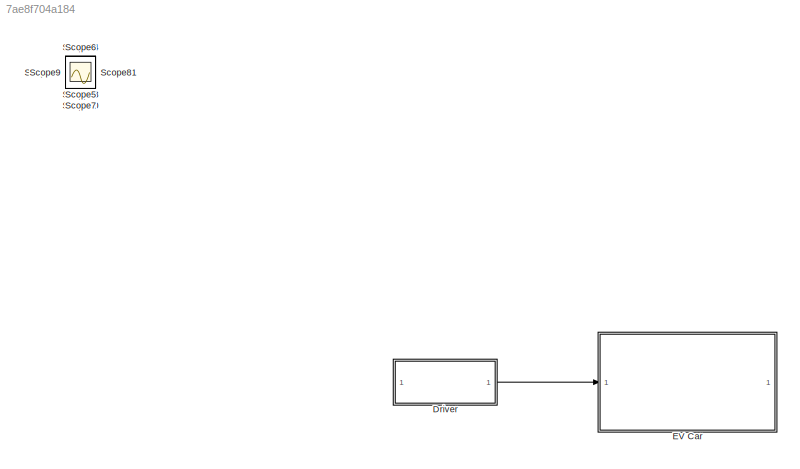
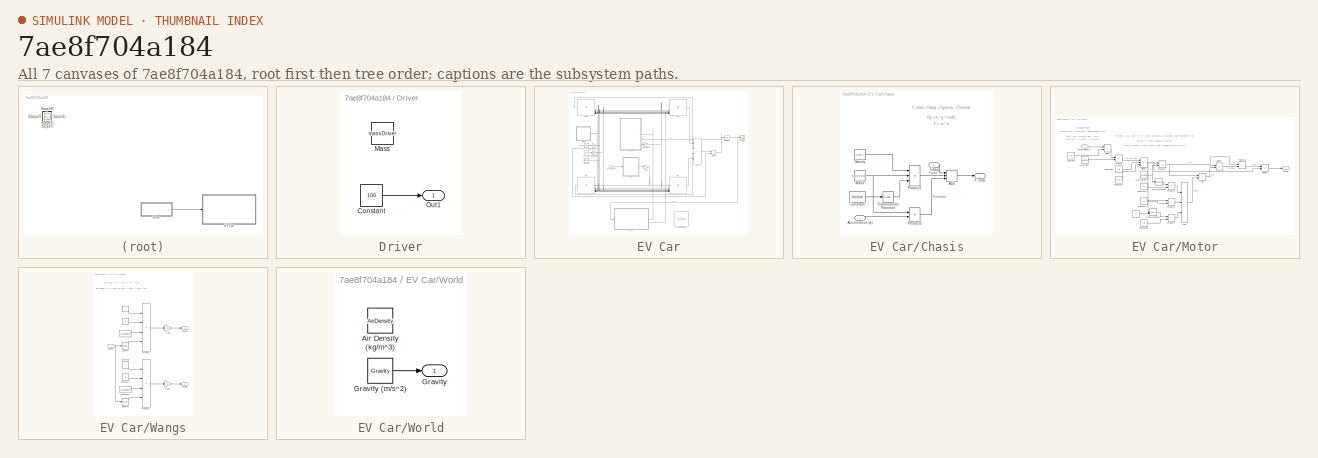
[diagram: thumbnail index - all 7 canvases of the model, root first then tree order]
MODEL slx_7ae8f704a184
KIND model
CONFIG AbsTol = auto
CONFIG EnableMultiTasking = off
CONFIG FixedStep = auto
CONFIG MaxStep = auto
CONFIG MinStep = auto
CONFIG RelTol = 1e-3
CONFIG SampleTimeConstraint = Unconstrained
CONFIG SolverName = VariableStepAuto
CONFIG StartTime = 0.0
CONFIG StopTime = 60.0
WORKSPACE source: mxarray member
WORKSPACE A = 1
WORKSPACE ADownforce = 1.5
WORKSPACE AirDensity = 1
WORKSPACE Cd = 0.8
WORKSPACE CdDownforce = 1.4
WORKSPACE Cl = 1.6
WORKSPACE Crr = 0.0015
WORKSPACE Gravity = 9.81
WORKSPACE Incline = 0
WORKSPACE K_c = 0.2
WORKSPACE K_i = 0.005
WORKSPACE K_w = 0.0005
WORKSPACE MaxRPM = 2000
WORKSPACE TireRadius = 0.2032
WORKSPACE Torque = 230
WORKSPACE massCar = 130
WORKSPACE massDriver = 60
BLOCK [SubSystem] Driver
BLOCK [Constant] Driver/Constant
  Value = 100
BLOCK [Constant] Driver/Mass
  Value = massDriver
BLOCK [Outport] Driver/Out1
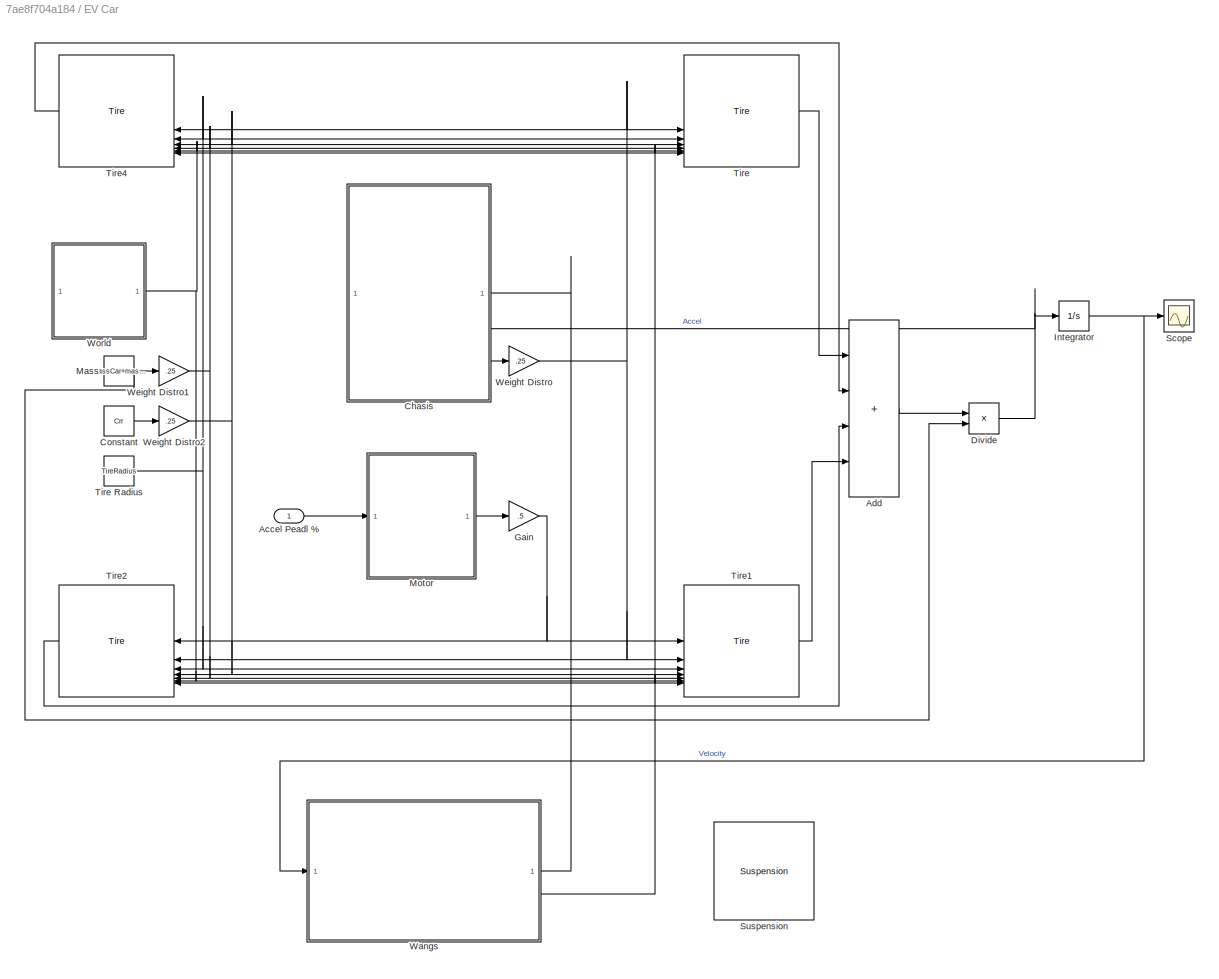
BLOCK [SubSystem] EV Car
BLOCK [Inport] EV Car/Accel Peadl %
BLOCK [Sum] EV Car/Add
  IconShape = rectangular
  Inputs = ++++
BLOCK [SubSystem] EV Car/Chasis
  PortSchema = {"entries":[{"content":{"sides":[{"content":{},"type":"ConnectorPlacement.EquallySpacedRectSide","uuid":"3bf05a28-119f-4ffa-933d-d1f1ff116959"},{"content":{"connectorIds":["In1","In2","Out1"],"side":"RIGHT"},"type":"ConnectorPlacement.EquallySpacedRectSide","uuid":"eb63bc44-58b6-4772-bae2-bbb2fef2688c"},{"content":{"side":"TOP"},"type":"ConnectorPlacement.EquallySpacedRectSide","uuid":"2e4910ff-b3...<+338ch>
BLOCK [Inport] EV Car/Chasis/Acceleration (a)
  Port = 2
BLOCK [Sum] EV Car/Chasis/Add
  IconShape = rectangular
  Inputs = +++
BLOCK [Constant] EV Car/Chasis/Constant
  Value = Incline
BLOCK [Outport] EV Car/Chasis/F_total
BLOCK [Inport] EV Car/Chasis/Fdrag
BLOCK [Constant] EV Car/Chasis/Gravity
  Value = Gravity
BLOCK [Constant] EV Car/Chasis/Mass
  Value = massCar+massDriver
BLOCK [Product] EV Car/Chasis/Product1
  Inputs = 3
BLOCK [Product] EV Car/Chasis/Product2
BLOCK [Trigonometry] EV Car/Chasis/Trigonometric Function
BLOCK [Constant] EV Car/Constant
  Value = Crr
BLOCK [Product] EV Car/Divide
  Inputs = */
BLOCK [Gain] EV Car/Gain
  Gain = .5
BLOCK [Integrator] EV Car/Integrator
BLOCK [Constant] EV Car/Mass
  Value = massCar+massDriver
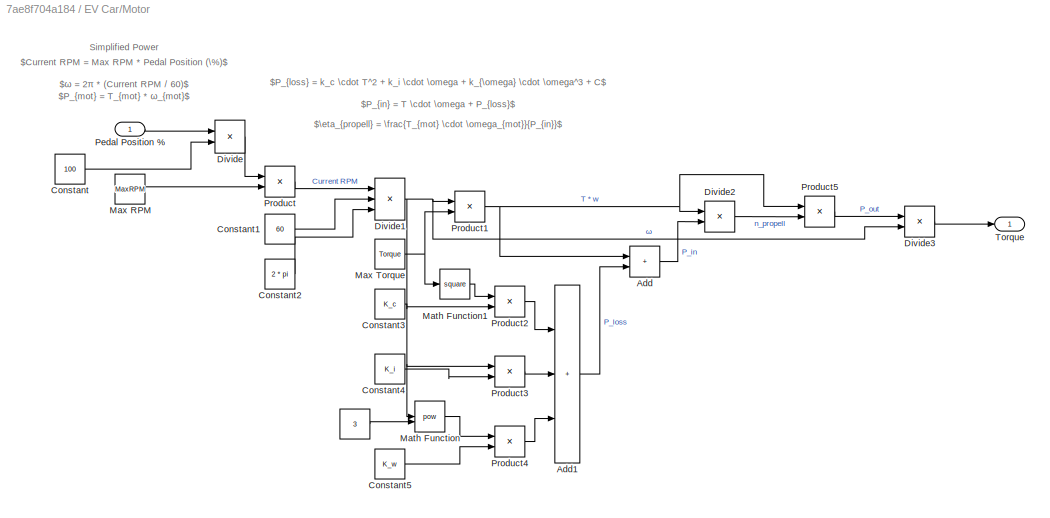
BLOCK [SubSystem] EV Car/Motor
  NameLocation = top
BLOCK [Constant] EV Car/Motor/ 
  Value = 3
BLOCK [Sum] EV Car/Motor/Add
  IconShape = rectangular
BLOCK [Sum] EV Car/Motor/Add1
  IconShape = rectangular
  Inputs = +++
BLOCK [Constant] EV Car/Motor/Constant
  Value = 100
BLOCK [Constant] EV Car/Motor/Constant1
  Value = 60
BLOCK [Constant] EV Car/Motor/Constant2
  Value = 2 * pi
BLOCK [Constant] EV Car/Motor/Constant3
  Value = K_c
BLOCK [Constant] EV Car/Motor/Constant4
  Value = K_i
BLOCK [Constant] EV Car/Motor/Constant5
  Value = K_w
BLOCK [Product] EV Car/Motor/Divide
  Inputs = */
BLOCK [Product] EV Car/Motor/Divide1
  Inputs = */*
BLOCK [Product] EV Car/Motor/Divide2
  Inputs = */
BLOCK [Product] EV Car/Motor/Divide3
  Inputs = */
BLOCK [Math] EV Car/Motor/Math Function
  Operator = pow
BLOCK [Math] EV Car/Motor/Math Function1
  Operator = square
BLOCK [Constant] EV Car/Motor/Max RPM
  Value = MaxRPM
BLOCK [Constant] EV Car/Motor/Max Torque
  Value = Torque
BLOCK [Inport] EV Car/Motor/Pedal Position %
BLOCK [Product] EV Car/Motor/Product
BLOCK [Product] EV Car/Motor/Product1
BLOCK [Product] EV Car/Motor/Product2
BLOCK [Product] EV Car/Motor/Product3
BLOCK [Product] EV Car/Motor/Product4
BLOCK [Product] EV Car/Motor/Product5
BLOCK [Outport] EV Car/Motor/Torque
BLOCK [Scope] EV Car/Scope
  Floating = off
  NumInputPorts = 1
  ScopeSpecificationString = Simulink.scopes.TimeScopeBlockCfg('CurrentConfiguration', extmgr.ConfigurationSet(extmgr.Configuration('Core','General UI',true),extmgr.Configuration('Core','Source UI',true),extmgr.Configuration('Sources','WiredSimulink',true),extmgr.Configuration('Visuals','Time Domain',true,'SerializedDisplays',{struct('MinYLimReal','-1.53738','MaxYLimReal','13.83641','YLabelReal','','MinYLimMag','0.00000','Max...<+1360ch>
BLOCK [Reference] EV Car/Suspension  REF=LinkedSubsytems/Suspension
  SourceBlock = LinkedSubsytems/Suspension
BLOCK [Reference] EV Car/Tire  REF=LinkedSubsytems/Tire
  SourceBlock = LinkedSubsytems/Tire
BLOCK [Constant] EV Car/Tire Radius
  Value = TireRadius
BLOCK [Reference] EV Car/Tire1  REF=LinkedSubsytems/Tire
  SourceBlock = LinkedSubsytems/Tire
BLOCK [Reference] EV Car/Tire2  REF=LinkedSubsytems/Tire
  SourceBlock = LinkedSubsytems/Tire
BLOCK [Reference] EV Car/Tire4  REF=LinkedSubsytems/Tire
  SourceBlock = LinkedSubsytems/Tire
BLOCK [SubSystem] EV Car/Wangs
BLOCK [Constant] EV Car/Wangs/ 
  Value = A
BLOCK [Constant] EV Car/Wangs/  
  Value = Cd
BLOCK [Constant] EV Car/Wangs/   
  Value = AirDensity
BLOCK [Constant] EV Car/Wangs/Constant
  Value = A
BLOCK [Constant] EV Car/Wangs/Constant1
  Value = Cl
BLOCK [Constant] EV Car/Wangs/Constant2
  Value = AirDensity
BLOCK [Outport] EV Car/Wangs/Fdown
  Port = 2
BLOCK [Outport] EV Car/Wangs/Fdrag
BLOCK [Gain] EV Car/Wangs/Gain
  Gain = .5
BLOCK [Gain] EV Car/Wangs/Gain1
  Gain = .5
BLOCK [Product] EV Car/Wangs/Product
  Inputs = 4
BLOCK [Product] EV Car/Wangs/Product1
  Inputs = 4
BLOCK [Math] EV Car/Wangs/Square
  Operator = square
BLOCK [Math] EV Car/Wangs/Square1
  Operator = square
BLOCK [Inport] EV Car/Wangs/Velocity
BLOCK [Gain] EV Car/Weight Distro
  Gain = .25
BLOCK [Gain] EV Car/Weight Distro1
  Gain = .25
BLOCK [Gain] EV Car/Weight Distro2
  Gain = .25
BLOCK [SubSystem] EV Car/World
BLOCK [Constant] EV Car/World/Air Density (kg//m^3)
  Value = AirDensity
BLOCK [Outport] EV Car/World/Gravity
BLOCK [Constant] EV Car/World/Gravity (m//s^2)
  Value = Gravity
BLOCK [Scope] Scope
  Floating = off
  IOType = viewer
  NumInputPorts = 1
  ScopeSpecificationString = Simulink.scopes.TimeScopeBlockCfg('CurrentConfiguration', extmgr.ConfigurationSet(extmgr.Configuration('Core','General UI',true),extmgr.Configuration('Core','Source UI',true),extmgr.Configuration('Sources','WiredSimulink',true,'DataLoggingVariableName','ScopeData1'),extmgr.Configuration('Visuals','Time Domain',true,'SerializedDisplays',{struct('MinYLimReal','74.90307','MaxYLimReal','274.90307','YL...<+1438ch>
BLOCK [Scope] Scope1
  Floating = off
  IOType = viewer
  NumInputPorts = 1
  ScopeSpecificationString = Simulink.scopes.TimeScopeBlockCfg('CurrentConfiguration', extmgr.ConfigurationSet(extmgr.Configuration('Core','General UI',true),extmgr.Configuration('Core','Source UI',true),extmgr.Configuration('Sources','WiredSimulink',true,'DataLoggingVariableName','ScopeData2'),extmgr.Configuration('Visuals','Time Domain',true,'SerializedDisplays',{struct('MinYLimReal','-1.74189','MaxYLimReal','-1.74142','YLa...<+1361ch>
BLOCK [Scope] Scope10
  Floating = off
  IOType = viewer
  NumInputPorts = 1
  ScopeSpecificationString = Simulink.scopes.TimeScopeBlockCfg('CurrentConfiguration', extmgr.ConfigurationSet(extmgr.Configuration('Core','General UI',true),extmgr.Configuration('Core','Source UI',true),extmgr.Configuration('Sources','WiredSimulink',true,'DataLoggingVariableName','ScopeData1'),extmgr.Configuration('Visuals','Time Domain',true,'SerializedDisplays',{struct('MinYLimReal','74.90307','MaxYLimReal','274.90307','YL...<+1441ch>
BLOCK [Scope] Scope11
  Floating = off
  IOType = viewer
  NumInputPorts = 1
  ScopeSpecificationString = Simulink.scopes.TimeScopeBlockCfg('CurrentConfiguration', extmgr.ConfigurationSet(extmgr.Configuration('Core','General UI',true),extmgr.Configuration('Core','Source UI',true),extmgr.Configuration('Sources','WiredSimulink',true,'DataLoggingVariableName','ScopeData2'),extmgr.Configuration('Visuals','Time Domain',true,'SerializedDisplays',{struct('MinYLimReal','-21.42031','MaxYLimReal','-11.95908','Y...<+1402ch>
BLOCK [Scope] Scope12
  Floating = off
  IOType = viewer
  NumInputPorts = 1
  ScopeSpecificationString = Simulink.scopes.TimeScopeBlockCfg('CurrentConfiguration', extmgr.ConfigurationSet(extmgr.Configuration('Core','General UI',true),extmgr.Configuration('Core','Source UI',true),extmgr.Configuration('Sources','WiredSimulink',true,'DataLoggingVariableName','ScopeData3'),extmgr.Configuration('Visuals','Time Domain',true,'SerializedDisplays',{struct('MinYLimReal','30.11313','MaxYLimReal','39.57436','YLa...<+1400ch>
BLOCK [Scope] Scope13
  Floating = off
  IOType = viewer
  NumInputPorts = 1
  ScopeSpecificationString = Simulink.scopes.TimeScopeBlockCfg('CurrentConfiguration', extmgr.ConfigurationSet(extmgr.Configuration('Core','General UI',true),extmgr.Configuration('Core','Source UI',true),extmgr.Configuration('Sources','WiredSimulink',true,'DataLoggingVariableName','ScopeData1'),extmgr.Configuration('Visuals','Time Domain',true,'SerializedDisplays',{struct('MinYLimReal','5174.56967','MaxYLimReal','25174.56967'...<+1456ch>
BLOCK [Scope] Scope14
  Floating = off
  IOType = viewer
  NumInputPorts = 1
  ScopeSpecificationString = Simulink.scopes.TimeScopeBlockCfg('CurrentConfiguration', extmgr.ConfigurationSet(extmgr.Configuration('Core','General UI',true),extmgr.Configuration('Core','Source UI',true),extmgr.Configuration('Sources','WiredSimulink',true,'DataLoggingVariableName','ScopeData2'),extmgr.Configuration('Visuals','Time Domain',true,'SerializedDisplays',{struct('MinYLimReal','38171.08736','MaxYLimReal','58171.08736...<+1461ch>
BLOCK [Scope] Scope2
  Floating = off
  IOType = viewer
  NumInputPorts = 1
  ScopeSpecificationString = Simulink.scopes.TimeScopeBlockCfg('CurrentConfiguration', extmgr.ConfigurationSet(extmgr.Configuration('Core','General UI',true),extmgr.Configuration('Core','Source UI',true),extmgr.Configuration('Sources','WiredSimulink',true,'DataLoggingVariableName','ScopeData3'),extmgr.Configuration('Visuals','Time Domain',true,'SerializedDisplays',{struct('MinYLimReal','2.79598','MaxYLimReal','2.79646','YLabe...<+1386ch>
BLOCK [Scope] Scope3
  Floating = off
  IOType = viewer
  NumInputPorts = 1
  ScopeSpecificationString = Simulink.scopes.TimeScopeBlockCfg('CurrentConfiguration', extmgr.ConfigurationSet(extmgr.Configuration('Core','General UI',true),extmgr.Configuration('Core','Source UI',true),extmgr.Configuration('Sources','WiredSimulink',true,'DataLoggingVariableName','ScopeData4'),extmgr.Configuration('Visuals','Time Domain',true,'SerializedDisplays',{struct('MinYLimReal','0.03352','MaxYLimReal','0.29713','YLabe...<+1391ch>
BLOCK [Scope] Scope4
  Floating = off
  IOType = viewer
  NumInputPorts = 1
  ScopeSpecificationString = Simulink.scopes.TimeScopeBlockCfg('CurrentConfiguration', extmgr.ConfigurationSet(extmgr.Configuration('Core','General UI',true),extmgr.Configuration('Core','Source UI',true),extmgr.Configuration('Sources','WiredSimulink',true,'DataLoggingVariableName','ScopeData5'),extmgr.Configuration('Visuals','Time Domain',true,'SerializedDisplays',{struct('MinYLimReal','6.36937','MaxYLimReal','56.45459','YLab...<+1420ch>
BLOCK [Scope] Scope5
  Floating = off
  IOType = viewer
  NumInputPorts = 1
  ScopeSpecificationString = Simulink.scopes.TimeScopeBlockCfg('CurrentConfiguration', extmgr.ConfigurationSet(extmgr.Configuration('Core','General UI',true),extmgr.Configuration('Core','Source UI',true),extmgr.Configuration('Sources','WiredSimulink',true,'DataLoggingVariableName','ScopeData6'),extmgr.Configuration('Visuals','Time Domain',true,'SerializedDisplays',{struct('MinYLimReal','-54.0622','MaxYLimReal','0.96482','YLab...<+1389ch>
BLOCK [Scope] Scope6
  Floating = off
  IOType = viewer
  NumInputPorts = 1
  ScopeSpecificationString = Simulink.scopes.TimeScopeBlockCfg('CurrentConfiguration', extmgr.ConfigurationSet(extmgr.Configuration('Core','General UI',true),extmgr.Configuration('Core','Source UI',true),extmgr.Configuration('Sources','WiredSimulink',true,'DataLoggingVariableName','ScopeData7'),extmgr.Configuration('Visuals','Time Domain',true,'SerializedDisplays',{struct('MinYLimReal','-1.00000','MaxYLimReal','1.00000','YLab...<+1423ch>
BLOCK [Scope] Scope7
  Floating = off
  IOType = viewer
  NumInputPorts = 1
  ScopeSpecificationString = Simulink.scopes.TimeScopeBlockCfg('CurrentConfiguration', extmgr.ConfigurationSet(extmgr.Configuration('Core','General UI',true),extmgr.Configuration('Core','Source UI',true),extmgr.Configuration('Sources','WiredSimulink',true,'DataLoggingVariableName','ScopeData8'),extmgr.Configuration('Visuals','Time Domain',true,'SerializedDisplays',{struct('MinYLimReal','1.03524','MaxYLimReal','13.37671','YLab...<+1390ch>
BLOCK [Scope] Scope8
  Floating = off
  IOType = viewer
  NumInputPorts = 1
  ScopeSpecificationString = Simulink.scopes.TimeScopeBlockCfg('CurrentConfiguration', extmgr.ConfigurationSet(extmgr.Configuration('Core','General UI',true),extmgr.Configuration('Core','Source UI',true),extmgr.Configuration('Sources','WiredSimulink',true,'DataLoggingVariableName','ScopeData9'),extmgr.Configuration('Visuals','Time Domain',true,'SerializedDisplays',{struct('MinYLimReal','3.53788','MaxYLimReal','5.53788','YLabe...<+1392ch>
BLOCK [Scope] Scope9
  Floating = off
  IOType = viewer
  NumInputPorts = 1
  ScopeSpecificationString = Simulink.scopes.TimeScopeBlockCfg('CurrentConfiguration', extmgr.ConfigurationSet(extmgr.Configuration('Core','General UI',true),extmgr.Configuration('Core','Source UI',true),extmgr.Configuration('Sources','WiredSimulink',true,'DataLoggingVariableName','ScopeData10'),extmgr.Configuration('Visuals','Time Domain',true,'SerializedDisplays',{struct('MinYLimReal','1.03524','MaxYLimReal','13.37671','YLa...<+1362ch>
ANNOTATION EV Car/Chasis: Fg = m * g * sin(θ)
ANNOTATION EV Car/Chasis: Fi = m * a
ANNOTATION EV Car/Chasis: F_total = Fdrag + Fgravity + Finertial
ANNOTATION EV Car/Motor: $Current RPM = Max RPM * Pedal Position (\%)$
ANNOTATION EV Car/Motor: $P_{in} = T \cdot \omega + P_{loss}$
ANNOTATION EV Car/Motor: $P_{loss} = k_c \cdot T^2 + k_i \cdot \omega + k_{\omega} \cdot \omega^3 + C$
ANNOTATION EV Car/Motor: $P_{mot} = T_{mot} * ω_{mot}$
ANNOTATION EV Car/Motor: $\eta_{propell} = \frac{T_{mot} \cdot \omega_{mot}}{P_{in}}$
ANNOTATION EV Car/Motor: $ω = 2π * (Current RPM / 60)$
ANNOTATION EV Car/Motor: Simplified Power
ANNOTATION EV Car/Wangs: $F_{down} = 0.5 \cdot Cl \cdot ρ \cdot A \cdot V^2$
ANNOTATION EV Car/Wangs: $F_{drag} = 0.5 * Cd * A * ρ * V^2$
LINE Driver/Constant:1 -> Driver/Out1:1
LINE Driver:1 -> EV Car:1
LINE EV Car/Accel Peadl %:1 -> EV Car/Motor:1
LINE EV Car/Add:1 -> EV Car/Divide:1
LINE EV Car/Chasis/Acceleration (a):1 -> EV Car/Chasis/Product2:2
LINE EV Car/Chasis/Add:1 -> EV Car/Chasis/F_total:1
LINE EV Car/Chasis/Constant:1 -> EV Car/Chasis/Trigonometric Function:1
LINE EV Car/Chasis/Fdrag:1 -> EV Car/Chasis/Add:1
LINE EV Car/Chasis/Gravity:1 -> EV Car/Chasis/Product1:1
NET EV Car/Chasis/Mass:1 -> EV Car/Chasis/Product1:2, EV Car/Chasis/Product2:1
LINE EV Car/Chasis/Product1:1 -> EV Car/Chasis/Add:2
LINE EV Car/Chasis/Product2:1 -> EV Car/Chasis/Add:3
LINE EV Car/Chasis/Trigonometric Function:1 -> EV Car/Chasis/Product1:3
LINE EV Car/Chasis:1 -> EV Car/Weight Distro:1
LINE EV Car/Constant:1 -> EV Car/Weight Distro2:1
NET EV Car/Divide:1 -> EV Car/Chasis:2, EV Car/Integrator:1
NET EV Car/Gain:1 -> EV Car/Tire1:1, EV Car/Tire2:1
NET EV Car/Integrator:1 -> EV Car/Scope:1, EV Car/Wangs:1
NET EV Car/Mass:1 -> EV Car/Divide:2, EV Car/Weight Distro1:1
LINE EV Car/Motor/ :1 -> EV Car/Motor/Math Function:2
LINE EV Car/Motor/Add1:1 -> EV Car/Motor/Add:2
LINE EV Car/Motor/Add:1 -> EV Car/Motor/Divide2:2
LINE EV Car/Motor/Constant1:1 -> EV Car/Motor/Divide1:2
LINE EV Car/Motor/Constant2:1 -> EV Car/Motor/Divide1:3
LINE EV Car/Motor/Constant3:1 -> EV Car/Motor/Product2:2
LINE EV Car/Motor/Constant4:1 -> EV Car/Motor/Product3:2
LINE EV Car/Motor/Constant5:1 -> EV Car/Motor/Product4:2
LINE EV Car/Motor/Constant:1 -> EV Car/Motor/Divide:2
NET EV Car/Motor/Divide1:1 -> EV Car/Motor/Divide3:2, EV Car/Motor/Math Function:1, EV Car/Motor/Product1:1, EV Car/Motor/Product3:1
LINE EV Car/Motor/Divide2:1 -> EV Car/Motor/Product5:2
LINE EV Car/Motor/Divide3:1 -> EV Car/Motor/Torque:1
LINE EV Car/Motor/Divide:1 -> EV Car/Motor/Product:1
LINE EV Car/Motor/Math Function1:1 -> EV Car/Motor/Product2:1
LINE EV Car/Motor/Math Function:1 -> EV Car/Motor/Product4:1
LINE EV Car/Motor/Max RPM:1 -> EV Car/Motor/Product:2
NET EV Car/Motor/Max Torque:1 -> EV Car/Motor/Math Function1:1, EV Car/Motor/Product1:2
LINE EV Car/Motor/Pedal Position %:1 -> EV Car/Motor/Divide:1
NET EV Car/Motor/Product1:1 -> EV Car/Motor/Add:1, EV Car/Motor/Divide2:1, EV Car/Motor/Product5:1
LINE EV Car/Motor/Product2:1 -> EV Car/Motor/Add1:1
LINE EV Car/Motor/Product3:1 -> EV Car/Motor/Add1:2
LINE EV Car/Motor/Product4:1 -> EV Car/Motor/Add1:3
LINE EV Car/Motor/Product5:1 -> EV Car/Motor/Divide3:1
LINE EV Car/Motor/Product:1 -> EV Car/Motor/Divide1:1
LINE EV Car/Motor:1 -> EV Car/Gain:1
NET EV Car/Tire Radius:1 -> EV Car/Tire1:3, EV Car/Tire2:3, EV Car/Tire4:3, EV Car/Tire:3
LINE EV Car/Tire1:1 -> EV Car/Add:4
LINE EV Car/Tire2:1 -> EV Car/Add:3
LINE EV Car/Tire4:1 -> EV Car/Add:2
LINE EV Car/Tire:1 -> EV Car/Add:1
LINE EV Car/Wangs/   :1 -> EV Car/Wangs/Product:3
LINE EV Car/Wangs/  :1 -> EV Car/Wangs/Product:2
LINE EV Car/Wangs/ :1 -> EV Car/Wangs/Product:1
LINE EV Car/Wangs/Constant1:1 -> EV Car/Wangs/Product1:2
LINE EV Car/Wangs/Constant2:1 -> EV Car/Wangs/Product1:3
LINE EV Car/Wangs/Constant:1 -> EV Car/Wangs/Product1:1
LINE EV Car/Wangs/Gain1:1 -> EV Car/Wangs/Fdown:1
LINE EV Car/Wangs/Gain:1 -> EV Car/Wangs/Fdrag:1
LINE EV Car/Wangs/Product1:1 -> EV Car/Wangs/Gain1:1
LINE EV Car/Wangs/Product:1 -> EV Car/Wangs/Gain:1
LINE EV Car/Wangs/Square1:1 -> EV Car/Wangs/Product1:4
LINE EV Car/Wangs/Square:1 -> EV Car/Wangs/Product:4
NET EV Car/Wangs/Velocity:1 -> EV Car/Wangs/Square1:1, EV Car/Wangs/Square:1
LINE EV Car/Wangs:1 -> EV Car/Chasis:1
NET EV Car/Wangs:2 -> EV Car/Tire1:7, EV Car/Tire2:7, EV Car/Tire4:7, EV Car/Tire:7
NET EV Car/Weight Distro1:1 -> EV Car/Tire1:5, EV Car/Tire2:5, EV Car/Tire4:5, EV Car/Tire:5
NET EV Car/Weight Distro2:1 -> EV Car/Tire1:4, EV Car/Tire2:4, EV Car/Tire4:4, EV Car/Tire:4
NET EV Car/Weight Distro:1 -> EV Car/Tire1:2, EV Car/Tire2:2, EV Car/Tire4:2, EV Car/Tire:2
LINE EV Car/World/Gravity (m//s^2):1 -> EV Car/World/Gravity:1
NET EV Car/World:1 -> EV Car/Tire1:6, EV Car/Tire2:6, EV Car/Tire4:6, EV Car/Tire:6
note: NET lines group one-source signal fan-out (src -> all destinations, sorted); 1:1 wires keep LINE
